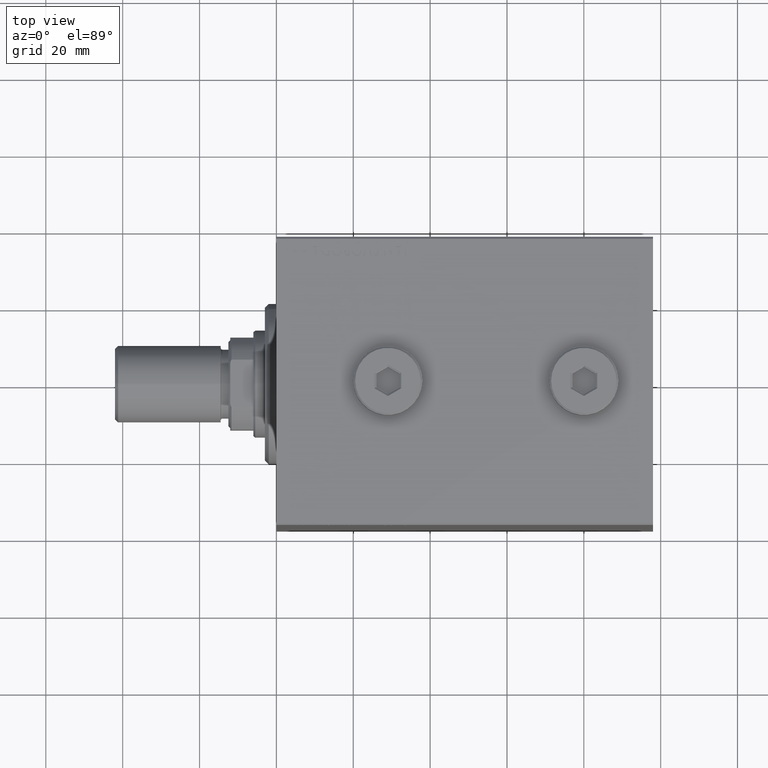
[diagram: clean part render]
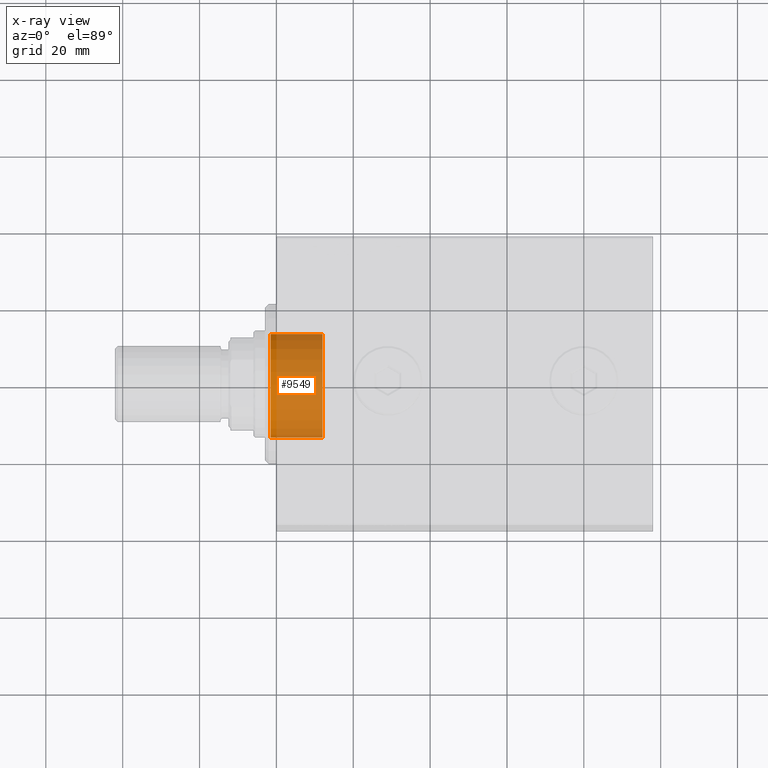
[diagram: x-ray — body ghosted, one internal face saturated and labeled with its STEP entity id]
A machine part, top view, then the same camera in x-ray: the body is ghosted and one INTERNAL B-rep face — a face not visible from any outside direction — is saturated and labeled: STEP entity #9549.
In plain terms, the highlighted cylindrical surface (partial cylindrical patch) has radius 14 mm, axis along (-1, 0, 0).
Its self-contained STEP definition (entity closure, byte-faithful):
#821 = EDGE_CURVE ( 'NONE', #10605, #5284, #32045, .T. ) ;
#1149 = AXIS2_PLACEMENT_3D ( 'NONE', #4832, #12476, #5523 ) ;
#1742 = DIRECTION ( 'NONE',  ( 1.000000000000000000, -0.000000000000000000, -0.000000000000000000 ) ) ;
#1973 = CARTESIAN_POINT ( 'NONE',  ( -12.00000000000000000, 0.000000000000000000, 0.000000000000000000 ) ) ;
#2655 = CIRCLE ( 'NONE', #1149, 14.00000000000000178 ) ;
#4832 = CARTESIAN_POINT ( 'NONE',  ( 1.499999999999999556, 0.000000000000000000, 0.000000000000000000 ) ) ;
#5284 = VERTEX_POINT ( 'NONE', #14072 ) ;
#5523 = DIRECTION ( 'NONE',  ( 0.000000000000000000, 0.000000000000000000, -1.000000000000000000 ) ) ;
#7182 = DIRECTION ( 'NONE',  ( 1.000000000000000000, 0.000000000000000000, 0.000000000000000000 ) ) ;
#9549 = ADVANCED_FACE ( 'NONE', ( #22815 ), #33481, .F. ) ;
#10605 = VERTEX_POINT ( 'NONE', #31625 ) ;
#11306 = ORIENTED_EDGE ( 'NONE', *, *, #30571, .T. ) ;
#12476 = DIRECTION ( 'NONE',  ( 1.000000000000000000, 0.000000000000000000, 0.000000000000000000 ) ) ;
#13400 = EDGE_CURVE ( 'NONE', #39755, #42887, #2655, .T. ) ;
#13673 = CARTESIAN_POINT ( 'NONE',  ( -12.00000000000000000, 0.000000000000000000, 0.000000000000000000 ) ) ;
#14072 = CARTESIAN_POINT ( 'NONE',  ( -12.00000000000000000, 0.000000000000000000, -14.00000000000000178 ) ) ;
#16090 = DIRECTION ( 'NONE',  ( 0.000000000000000000, 0.000000000000000000, -1.000000000000000000 ) ) ;
#18225 = EDGE_LOOP ( 'NONE', ( #39941, #11306, #36551, #34033 ) ) ;
#19641 = DIRECTION ( 'NONE',  ( 1.000000000000000000, -0.000000000000000000, -0.000000000000000000 ) ) ;
#21073 = DIRECTION ( 'NONE',  ( 0.000000000000000000, 0.000000000000000000, -1.000000000000000000 ) ) ;
#21986 = CARTESIAN_POINT ( 'NONE',  ( 1.499999999999999556, 0.000000000000000000, -14.00000000000000178 ) ) ;
#22815 = FACE_OUTER_BOUND ( 'NONE', #18225, .T. ) ;
#23327 = CARTESIAN_POINT ( 'NONE',  ( 1.499999999999999556, 1.714505518806294835E-15, 14.00000000000000178 ) ) ;
#23548 = VECTOR ( 'NONE', #19641, 1000.000000000000000 ) ;
#23589 = LINE ( 'NONE', #37736, #23548 ) ;
#25369 = AXIS2_PLACEMENT_3D ( 'NONE', #13673, #7182, #21073 ) ;
#25779 = VECTOR ( 'NONE', #40784, 1000.000000000000000 ) ;
#26656 = CARTESIAN_POINT ( 'NONE',  ( -12.00000000000000000, 0.000000000000000000, -14.00000000000000178 ) ) ;
#30571 = EDGE_CURVE ( 'NONE', #10605, #39755, #23589, .T. ) ;
#31625 = CARTESIAN_POINT ( 'NONE',  ( -12.00000000000000000, 1.714505518806294835E-15, 14.00000000000000178 ) ) ;
#31924 = EDGE_CURVE ( 'NONE', #5284, #42887, #44246, .T. ) ;
#32045 = CIRCLE ( 'NONE', #25369, 14.00000000000000178 ) ;
#33481 = CYLINDRICAL_SURFACE ( 'NONE', #35093, 14.00000000000000178 ) ;
#34033 = ORIENTED_EDGE ( 'NONE', *, *, #31924, .F. ) ;
#35093 = AXIS2_PLACEMENT_3D ( 'NONE', #1973, #1742, #16090 ) ;
#36551 = ORIENTED_EDGE ( 'NONE', *, *, #13400, .T. ) ;
#37736 = CARTESIAN_POINT ( 'NONE',  ( -12.00000000000000000, 1.714505518806294835E-15, 14.00000000000000178 ) ) ;
#39755 = VERTEX_POINT ( 'NONE', #23327 ) ;
#39941 = ORIENTED_EDGE ( 'NONE', *, *, #821, .F. ) ;
#40784 = DIRECTION ( 'NONE',  ( 1.000000000000000000, -0.000000000000000000, -0.000000000000000000 ) ) ;
#42887 = VERTEX_POINT ( 'NONE', #21986 ) ;
#44246 = LINE ( 'NONE', #26656, #25779 ) ;